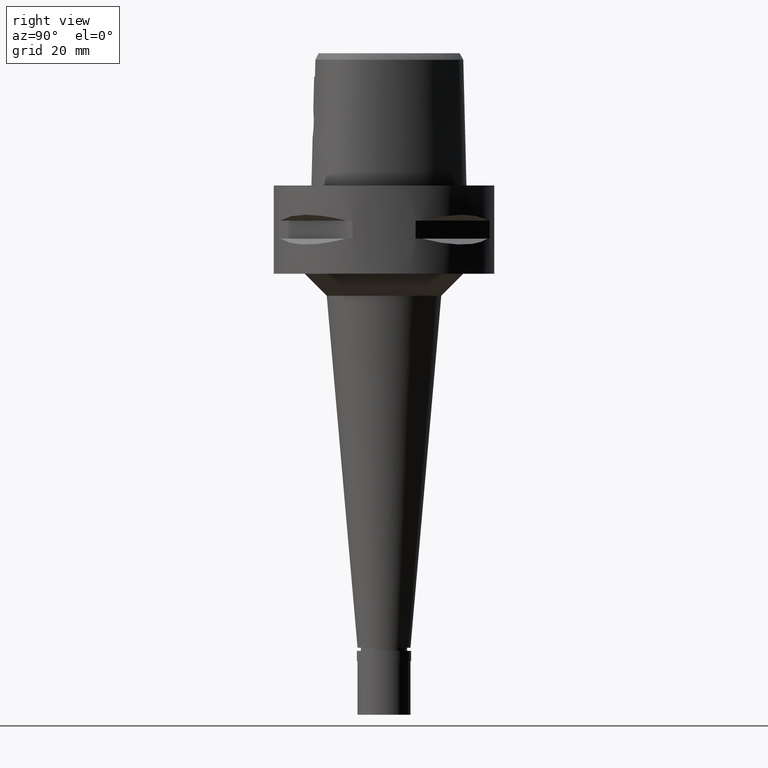
[diagram: clean part render]
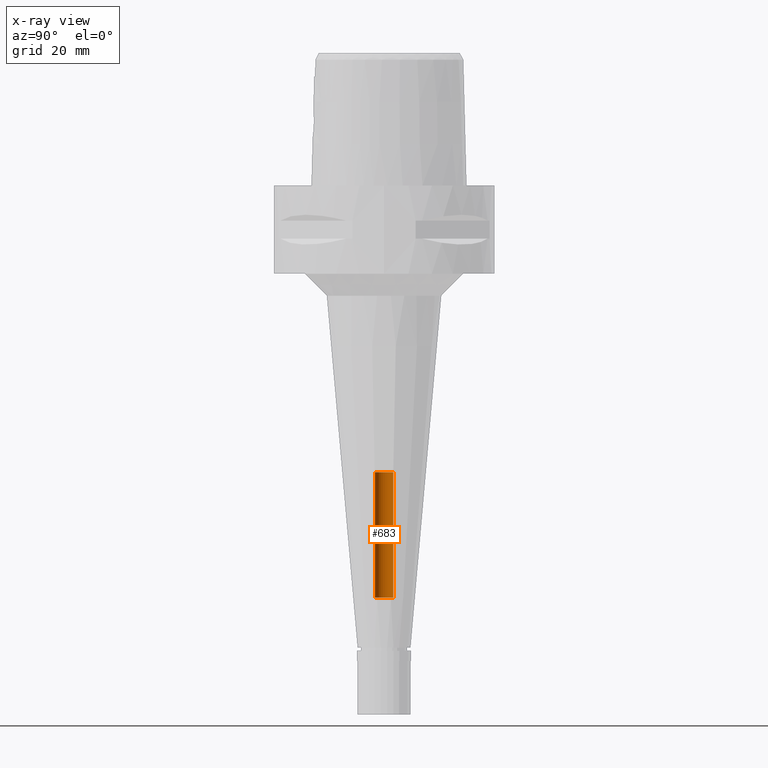
[diagram: x-ray — body ghosted, one internal face saturated and labeled with its STEP entity id]
A machine part, right view, then the same camera in x-ray: the body is ghosted and one INTERNAL B-rep face — a face not visible from any outside direction — is saturated and labeled: STEP entity #683.
In plain terms, the highlighted cylindrical surface (edge-blend (fillet) strip) has radius 2.1 mm, axis along (0, 0, -1).
Its self-contained STEP definition (entity closure, byte-faithful):
#138 = CARTESIAN_POINT ( 'NONE',  ( 0.0000000000000000000, 2.100000000000000089, -65.00000000000000000 ) ) ;
#141 = ORIENTED_EDGE ( 'NONE', *, *, #2713, .T. ) ;
#166 = CARTESIAN_POINT ( 'NONE',  ( 0.0000000000000000000, 1.295676313497999978E-14, -65.00000000000000000 ) ) ;
#317 = ORIENTED_EDGE ( 'NONE', *, *, #1333, .T. ) ;
#421 = VERTEX_POINT ( 'NONE', #3227 ) ;
#516 = DIRECTION ( 'NONE',  ( 0.0000000000000000000, 1.000000000000000000, 0.0000000000000000000 ) ) ;
#582 = AXIS2_PLACEMENT_3D ( 'NONE', #166, #885, #516 ) ;
#646 = CIRCLE ( 'NONE', #2667, 2.100000000000000089 ) ;
#683 = ADVANCED_FACE ( 'NONE', ( #3671 ), #3646, .F. ) ;
#727 = LINE ( 'NONE', #1862, #1510 ) ;
#762 = DIRECTION ( 'NONE',  ( 0.0000000000000000000, -1.000000000000000000, 0.0000000000000000000 ) ) ;
#790 = CARTESIAN_POINT ( 'NONE',  ( 0.0000000000000000000, 1.295676313497999978E-14, -93.50000000000000000 ) ) ;
#835 = VERTEX_POINT ( 'NONE', #138 ) ;
#885 = DIRECTION ( 'NONE',  ( 0.0000000000000000000, 0.0000000000000000000, 1.000000000000000000 ) ) ;
#1041 = DIRECTION ( 'NONE',  ( 0.0000000000000000000, 0.0000000000000000000, 1.000000000000000000 ) ) ;
#1061 = LINE ( 'NONE', #3665, #1345 ) ;
#1272 = EDGE_CURVE ( 'NONE', #3803, #2529, #1061, .T. ) ;
#1333 = EDGE_CURVE ( 'NONE', #3803, #421, #646, .T. ) ;
#1345 = VECTOR ( 'NONE', #3362, 1000.000000000000000 ) ;
#1510 = VECTOR ( 'NONE', #1041, 1000.000000000000000 ) ;
#1843 = DIRECTION ( 'NONE',  ( 0.0000000000000000000, -1.000000000000000000, 0.0000000000000000000 ) ) ;
#1862 = CARTESIAN_POINT ( 'NONE',  ( 0.0000000000000000000, 2.100000000000000089, -93.50000000000000000 ) ) ;
#2200 = EDGE_CURVE ( 'NONE', #835, #2529, #4514, .T. ) ;
#2269 = AXIS2_PLACEMENT_3D ( 'NONE', #2983, #4069, #1843 ) ;
#2529 = VERTEX_POINT ( 'NONE', #2837 ) ;
#2617 = ORIENTED_EDGE ( 'NONE', *, *, #1272, .F. ) ;
#2667 = AXIS2_PLACEMENT_3D ( 'NONE', #790, #2914, #762 ) ;
#2713 = EDGE_CURVE ( 'NONE', #421, #835, #727, .T. ) ;
#2837 = CARTESIAN_POINT ( 'NONE',  ( 0.0000000000000000000, -2.100000000000000089, -65.00000000000000000 ) ) ;
#2914 = DIRECTION ( 'NONE',  ( 0.0000000000000000000, 0.0000000000000000000, -1.000000000000000000 ) ) ;
#2983 = CARTESIAN_POINT ( 'NONE',  ( 0.0000000000000000000, 1.295676313497999978E-14, 5.799999999999999822 ) ) ;
#3227 = CARTESIAN_POINT ( 'NONE',  ( 0.0000000000000000000, 2.100000000000000089, -93.50000000000000000 ) ) ;
#3362 = DIRECTION ( 'NONE',  ( 0.0000000000000000000, 0.0000000000000000000, 1.000000000000000000 ) ) ;
#3608 = ORIENTED_EDGE ( 'NONE', *, *, #2200, .T. ) ;
#3630 = EDGE_LOOP ( 'NONE', ( #3608, #2617, #317, #141 ) ) ;
#3646 = CYLINDRICAL_SURFACE ( 'NONE', #2269, 2.100000000000000089 ) ;
#3665 = CARTESIAN_POINT ( 'NONE',  ( 0.0000000000000000000, -2.100000000000000089, -93.50000000000000000 ) ) ;
#3671 = FACE_OUTER_BOUND ( 'NONE', #3630, .T. ) ;
#3803 = VERTEX_POINT ( 'NONE', #4221 ) ;
#4069 = DIRECTION ( 'NONE',  ( 0.0000000000000000000, 0.0000000000000000000, -1.000000000000000000 ) ) ;
#4221 = CARTESIAN_POINT ( 'NONE',  ( 0.0000000000000000000, -2.100000000000000089, -93.50000000000000000 ) ) ;
#4514 = CIRCLE ( 'NONE', #582, 2.100000000000000089 ) ;